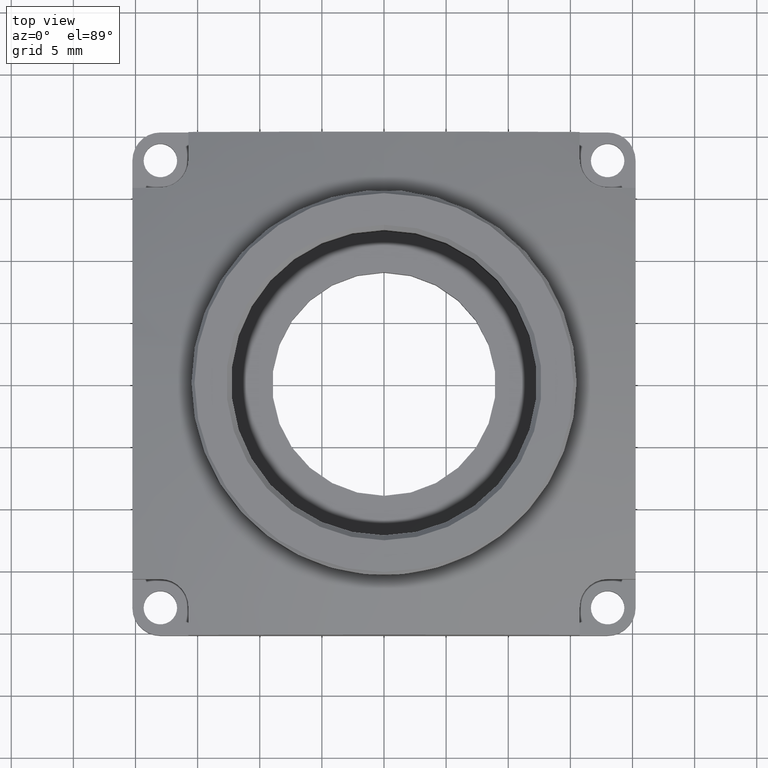
[diagram: clean part render]
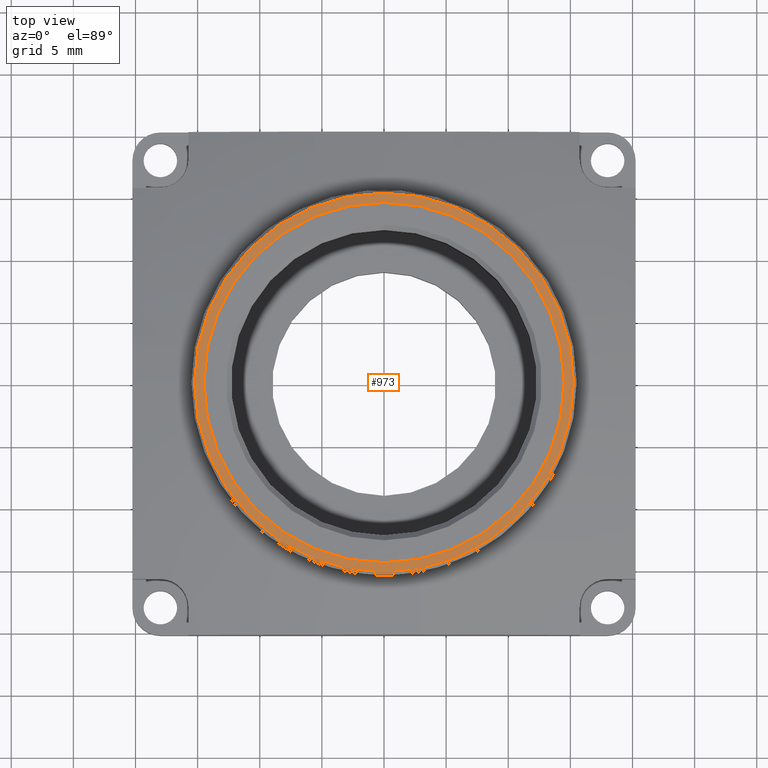
[diagram: same view with one face highlighted and labeled with its STEP entity id]
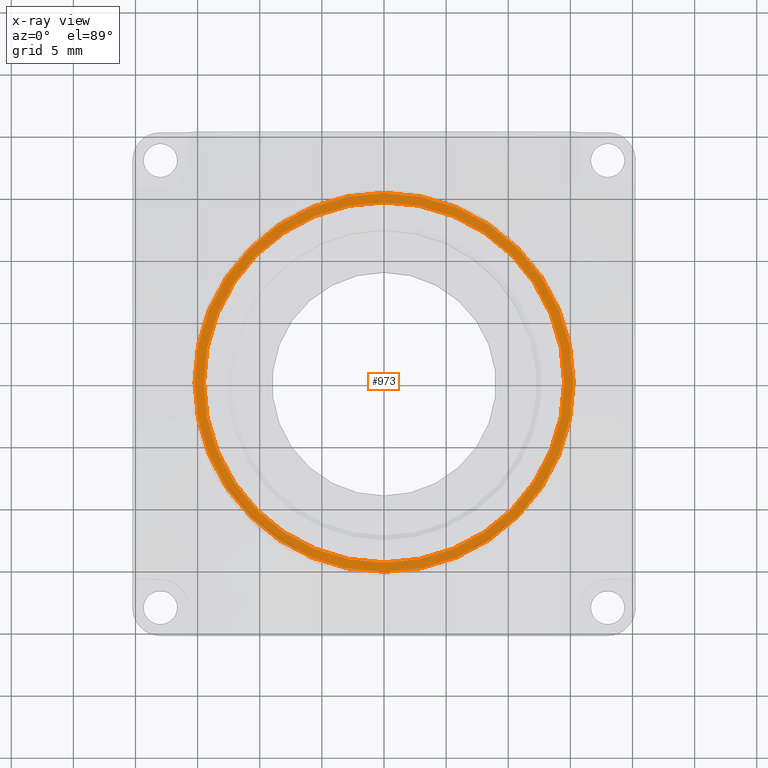
[diagram: x-ray of the same camera — body ghosted, the highlighted face saturated]
A machine part, top view. The second image highlights one B-rep face of the part: STEP entity #973.
The next image is the same camera in x-ray: the body ghosted, the highlighted face saturated — about 0% of this face is hidden behind the body in this view.
In plain terms, the highlighted planar face has unit normal (0, 0, 1).
Its self-contained STEP definition (entity closure, byte-faithful):
#973=ADVANCED_FACE('',(#1473,#1398),#4319,.T.);
#1398=FACE_OUTER_BOUND('',#1869,.F.);
#1473=FACE_BOUND('',#1868,.F.);
#1868=EDGE_LOOP('',(#3923,#3924,#3925,#3926));
#1869=EDGE_LOOP('',(#3927,#3928));
#3923=ORIENTED_EDGE('',*,*,#7953,.T.);
#3924=ORIENTED_EDGE('',*,*,#7954,.T.);
#3925=ORIENTED_EDGE('',*,*,#7956,.T.);
#3926=ORIENTED_EDGE('',*,*,#7955,.T.);
#3927=ORIENTED_EDGE('',*,*,#7969,.F.);
#3928=ORIENTED_EDGE('',*,*,#7968,.F.);
#4319=PLANE('',#10858);
#6893=CIRCLE('',#10462,14.5);
#6894=CIRCLE('',#10463,14.5);
#6895=CIRCLE('',#10464,14.5);
#6896=CIRCLE('',#10465,14.5);
#6908=CIRCLE('',#10477,15.25);
#6909=CIRCLE('',#10478,15.25);
#7953=EDGE_CURVE('',#9390,#9389,#6893,.T.);
#7954=EDGE_CURVE('',#9389,#9388,#6894,.T.);
#7955=EDGE_CURVE('',#9387,#9390,#6895,.T.);
#7956=EDGE_CURVE('',#9388,#9387,#6896,.T.);
#7968=EDGE_CURVE('',#9384,#9383,#6908,.T.);
#7969=EDGE_CURVE('',#9383,#9384,#6909,.T.);
#9383=VERTEX_POINT('',#13219);
#9384=VERTEX_POINT('',#13220);
#9387=VERTEX_POINT('',#13223);
#9388=VERTEX_POINT('',#13224);
#9389=VERTEX_POINT('',#13225);
#9390=VERTEX_POINT('',#13226);
#10462=AXIS2_PLACEMENT_3D('',#15313,#12261,#12262);
#10463=AXIS2_PLACEMENT_3D('',#15314,#12263,#12264);
#10464=AXIS2_PLACEMENT_3D('',#15315,#12265,#12266);
#10465=AXIS2_PLACEMENT_3D('',#15316,#12267,#12268);
#10477=AXIS2_PLACEMENT_3D('',#15328,#12291,#12292);
#10478=AXIS2_PLACEMENT_3D('',#15329,#12293,#12294);
#10858=AXIS2_PLACEMENT_3D('',#15757,#13101,#13102);
#12261=DIRECTION('',(0.,0.,1.));
#12262=DIRECTION('',(0.,1.,0.));
#12263=DIRECTION('',(0.,0.,1.));
#12264=DIRECTION('',(-1.,0.,0.));
#12265=DIRECTION('',(0.,0.,1.));
#12266=DIRECTION('',(1.,0.,0.));
#12267=DIRECTION('',(0.,0.,1.));
#12268=DIRECTION('',(0.,-1.,0.));
#12291=DIRECTION('',(0.,0.,1.));
#12292=DIRECTION('',(-1.,0.,0.));
#12293=DIRECTION('',(0.,0.,1.));
#12294=DIRECTION('',(1.,0.,0.));
#13101=DIRECTION('',(0.,0.,1.));
#13102=DIRECTION('',(0.,1.,0.));
#13219=CARTESIAN_POINT('',(15.25,0.,9.27000000000005));
#13220=CARTESIAN_POINT('',(-15.25,0.,9.27000000000005));
#13223=CARTESIAN_POINT('',(14.5,0.,9.27000000000005));
#13224=CARTESIAN_POINT('',(0.,-14.5000000000001,9.27000000000005));
#13225=CARTESIAN_POINT('',(-14.5,0.,9.27000000000005));
#13226=CARTESIAN_POINT('',(0.,14.4999999999999,9.27000000000005));
#15313=CARTESIAN_POINT('',(0.,0.,9.27000000000006));
#15314=CARTESIAN_POINT('',(0.,0.,9.27000000000006));
#15315=CARTESIAN_POINT('',(0.,0.,9.27000000000006));
#15316=CARTESIAN_POINT('',(0.,0.,9.27000000000006));
#15328=CARTESIAN_POINT('',(0.,0.,9.27000000000005));
#15329=CARTESIAN_POINT('',(0.,0.,9.27000000000005));
#15757=CARTESIAN_POINT('',(15.81,-15.8100000000001,9.27000000000005));